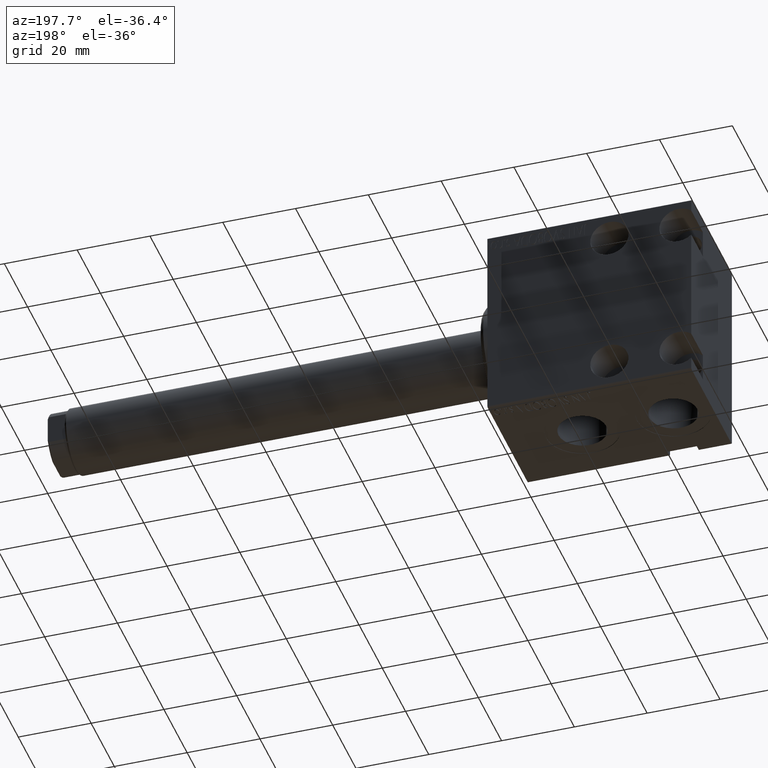
[diagram: clean part render]
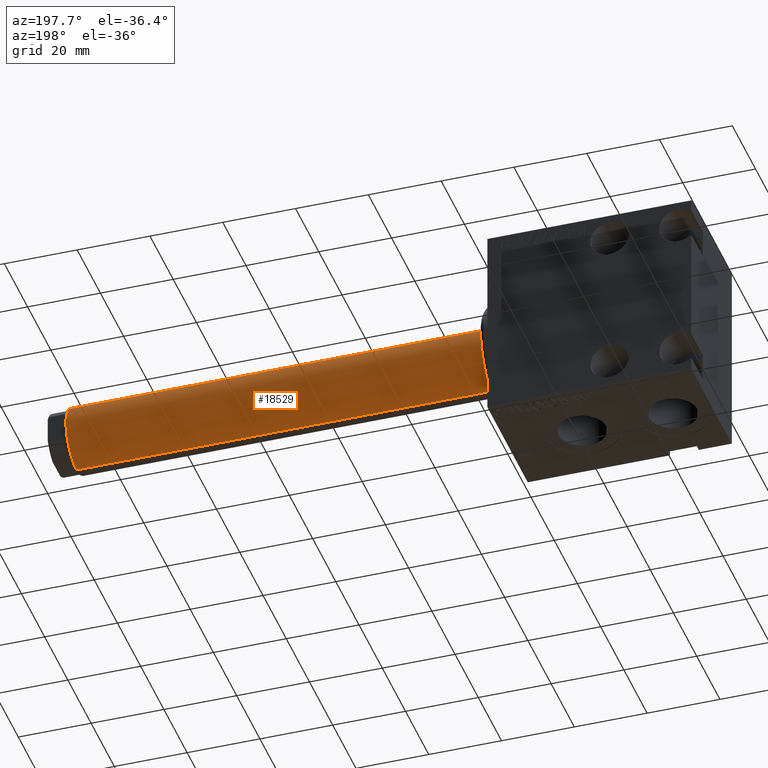
[diagram: same view with one face highlighted and labeled with its STEP entity id]
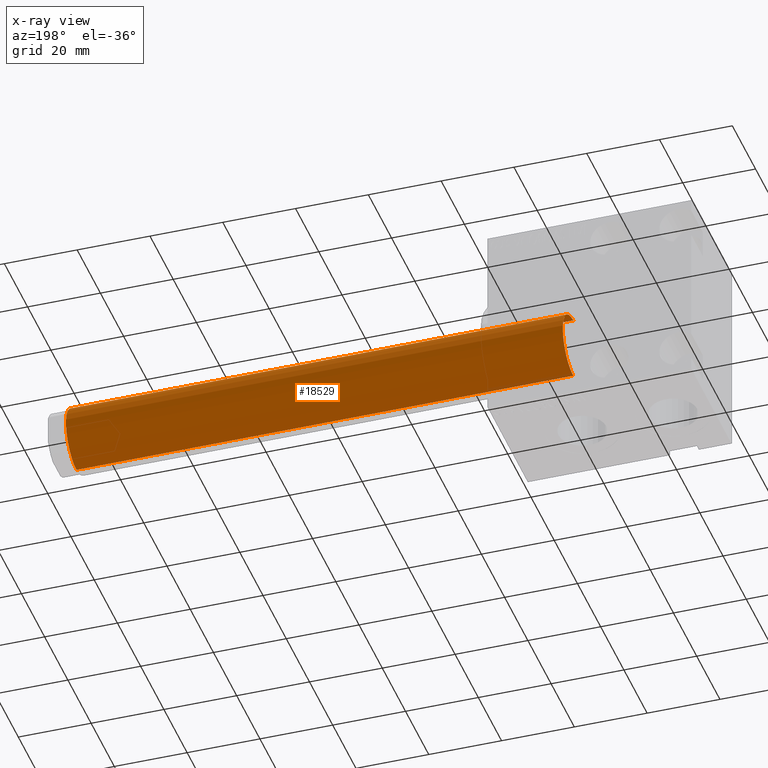
[diagram: x-ray of the same camera — body ghosted, the highlighted face saturated]
A machine part, auxiliary view. The second image highlights one B-rep face of the part: STEP entity #18529.
The next image is the same camera in x-ray: the body ghosted, the highlighted face saturated — about 1% of this face is hidden behind the body in this view.
In plain terms, the highlighted cylindrical surface (edge-blend (fillet) strip) has radius 9 mm, axis along (-1, -0, 0).
Its self-contained STEP definition (entity closure, byte-faithful):
#1214 = DIRECTION ( 'NONE',  ( 0.000000000000000000, 0.000000000000000000, -1.000000000000000000 ) ) ;
#2274 = LINE ( 'NONE', #9481, #9366 ) ;
#2916 = FACE_OUTER_BOUND ( 'NONE', #42311, .T. ) ;
#3566 = CARTESIAN_POINT ( 'NONE',  ( -9.000000000000000000, 0.000000000000000000, 169.5000000000000000 ) ) ;
#6275 = DIRECTION ( 'NONE',  ( 1.000000000000000000, 0.000000000000000000, 0.000000000000000000 ) ) ;
#6407 = CYLINDRICAL_SURFACE ( 'NONE', #13235, 9.000000000000000000 ) ;
#7451 = CARTESIAN_POINT ( 'NONE',  ( 9.000000000000000000, 1.102182119232617714E-15, 169.5000000000000000 ) ) ;
#9343 = LINE ( 'NONE', #36426, #26510 ) ;
#9366 = VECTOR ( 'NONE', #22589, 1000.000000000000000 ) ;
#9481 = CARTESIAN_POINT ( 'NONE',  ( -9.000000000000000000, 0.000000000000000000, 170.0000000000000000 ) ) ;
#12645 = CIRCLE ( 'NONE', #30063, 9.000000000000000000 ) ;
#12979 = CARTESIAN_POINT ( 'NONE',  ( 0.000000000000000000, 0.000000000000000000, 170.0000000000000000 ) ) ;
#13235 = AXIS2_PLACEMENT_3D ( 'NONE', #12979, #26282, #19732 ) ;
#13850 = CARTESIAN_POINT ( 'NONE',  ( 0.000000000000000000, 0.000000000000000000, 33.00000000000000000 ) ) ;
#16095 = EDGE_CURVE ( 'NONE', #18262, #35739, #9343, .T. ) ;
#16159 = ORIENTED_EDGE ( 'NONE', *, *, #23568, .T. ) ;
#16189 = CARTESIAN_POINT ( 'NONE',  ( -9.000000000000000000, 0.000000000000000000, 33.00000000000000000 ) ) ;
#17545 = DIRECTION ( 'NONE',  ( 0.000000000000000000, 0.000000000000000000, 1.000000000000000000 ) ) ;
#18262 = VERTEX_POINT ( 'NONE', #7451 ) ;
#18529 = ADVANCED_FACE ( 'NONE', ( #2916 ), #6407, .T. ) ;
#18534 = CIRCLE ( 'NONE', #31774, 9.000000000000000000 ) ;
#19391 = DIRECTION ( 'NONE',  ( -0.000000000000000000, -0.000000000000000000, -1.000000000000000000 ) ) ;
#19649 = VERTEX_POINT ( 'NONE', #16189 ) ;
#19732 = DIRECTION ( 'NONE',  ( -1.000000000000000000, 0.000000000000000000, 0.000000000000000000 ) ) ;
#20035 = CARTESIAN_POINT ( 'NONE',  ( 9.000000000000000000, 1.102182119232617714E-15, 33.00000000000000000 ) ) ;
#20294 = ORIENTED_EDGE ( 'NONE', *, *, #16095, .T. ) ;
#22589 = DIRECTION ( 'NONE',  ( -0.000000000000000000, -0.000000000000000000, -1.000000000000000000 ) ) ;
#23568 = EDGE_CURVE ( 'NONE', #31970, #18262, #12645, .T. ) ;
#24211 = ORIENTED_EDGE ( 'NONE', *, *, #39901, .T. ) ;
#25214 = DIRECTION ( 'NONE',  ( 1.000000000000000000, 0.000000000000000000, 0.000000000000000000 ) ) ;
#26282 = DIRECTION ( 'NONE',  ( -0.000000000000000000, -0.000000000000000000, -1.000000000000000000 ) ) ;
#26510 = VECTOR ( 'NONE', #19391, 1000.000000000000000 ) ;
#30063 = AXIS2_PLACEMENT_3D ( 'NONE', #34190, #1214, #25214 ) ;
#31774 = AXIS2_PLACEMENT_3D ( 'NONE', #13850, #17545, #6275 ) ;
#31820 = EDGE_CURVE ( 'NONE', #31970, #19649, #2274, .T. ) ;
#31970 = VERTEX_POINT ( 'NONE', #3566 ) ;
#34190 = CARTESIAN_POINT ( 'NONE',  ( 0.000000000000000000, 0.000000000000000000, 169.5000000000000000 ) ) ;
#35739 = VERTEX_POINT ( 'NONE', #20035 ) ;
#36426 = CARTESIAN_POINT ( 'NONE',  ( 9.000000000000000000, 1.102182119232617714E-15, 170.0000000000000000 ) ) ;
#39901 = EDGE_CURVE ( 'NONE', #35739, #19649, #18534, .T. ) ;
#41624 = ORIENTED_EDGE ( 'NONE', *, *, #31820, .F. ) ;
#42311 = EDGE_LOOP ( 'NONE', ( #16159, #20294, #24211, #41624 ) ) ;